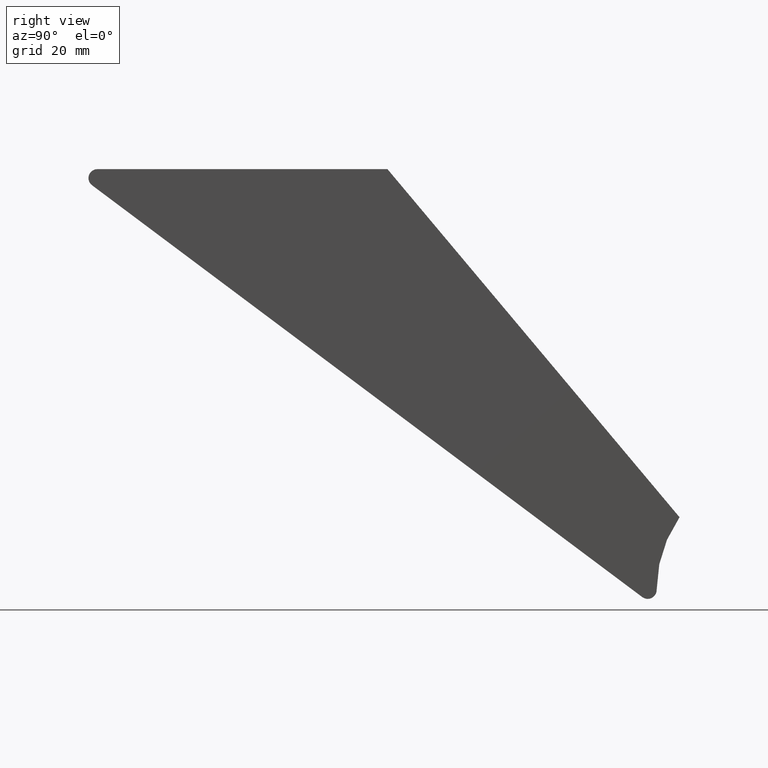
[diagram: clean part render]
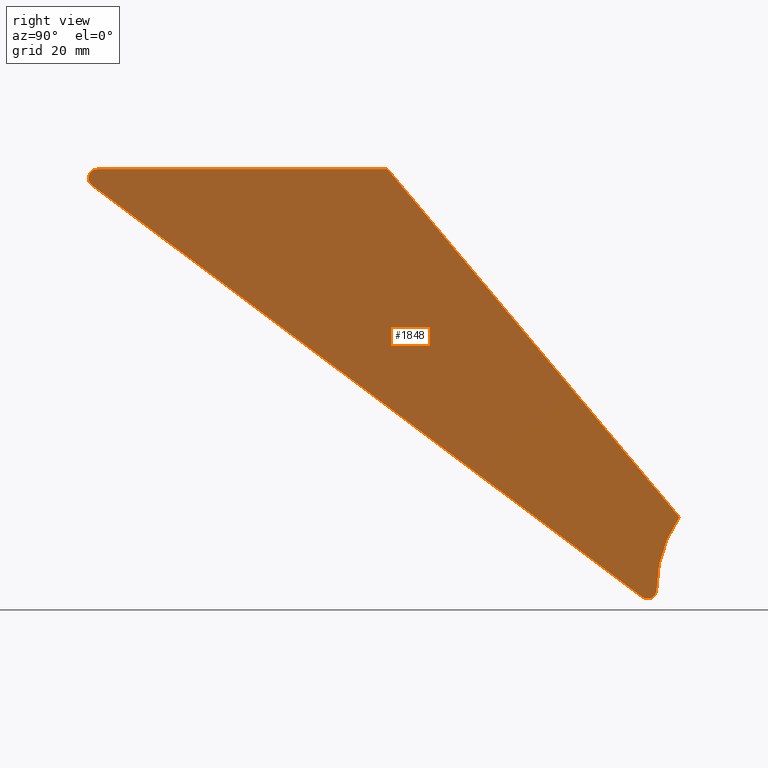
[diagram: same view with one face highlighted and labeled with its STEP entity id]
A machine part, right view. The second image highlights one B-rep face of the part: STEP entity #1848.
In plain terms, the highlighted planar face has unit normal (-1, 0, 0).
Its self-contained STEP definition (entity closure, byte-faithful):
#200 = ORIENTED_EDGE ( 'NONE', *, *, #12769, .T. ) ;
#586 = FACE_OUTER_BOUND ( 'NONE', #7244, .T. ) ;
#605 = EDGE_CURVE ( 'NONE', #7698, #5285, #7611, .T. ) ;
#851 = ORIENTED_EDGE ( 'NONE', *, *, #12301, .F. ) ;
#858 = DIRECTION ( 'NONE',  ( -1.000000000000000000, 0.000000000000000000, 0.000000000000000000 ) ) ;
#1471 = VERTEX_POINT ( 'NONE', #1697 ) ;
#1697 = CARTESIAN_POINT ( 'NONE',  ( 2.500000000000000000, 73.09783299600437090, -58.21457957381940673 ) ) ;
#1768 = PLANE ( 'NONE',  #3956 ) ;
#1848 = ADVANCED_FACE ( 'NONE', ( #586 ), #1768, .F. ) ;
#2257 = CIRCLE ( 'NONE', #3634, 1.499999999999998224 ) ;
#2748 = DIRECTION ( 'NONE',  ( 0.000000000000000000, 0.000000000000000000, 1.000000000000000000 ) ) ;
#2931 = DIRECTION ( 'NONE',  ( -1.000000000000000000, 0.000000000000000000, 0.000000000000000000 ) ) ;
#2989 = AXIS2_PLACEMENT_3D ( 'NONE', #11323, #2931, #10386 ) ;
#3260 = CARTESIAN_POINT ( 'NONE',  ( 2.500000000000000000, -24.25000000000000000, -1.499999999999992450 ) ) ;
#3266 = VERTEX_POINT ( 'NONE', #10722 ) ;
#3594 = CIRCLE ( 'NONE', #11087, 1.500000000000001332 ) ;
#3634 = AXIS2_PLACEMENT_3D ( 'NONE', #3260, #10588, #4342 ) ;
#3956 = AXIS2_PLACEMENT_3D ( 'NONE', #12411, #858, #11263 ) ;
#3967 = VERTEX_POINT ( 'NONE', #10246 ) ;
#4077 = ORIENTED_EDGE ( 'NONE', *, *, #605, .T. ) ;
#4342 = DIRECTION ( 'NONE',  ( 0.000000000000000000, 0.000000000000000000, 1.000000000000000000 ) ) ;
#4661 = CARTESIAN_POINT ( 'NONE',  ( 2.500000000000000000, -25.14880911321005641, -2.700892242464130621 ) ) ;
#4871 = CARTESIAN_POINT ( 'NONE',  ( 2.500000000000000000, 73.09783299600437090, -58.21457957381940673 ) ) ;
#5285 = VERTEX_POINT ( 'NONE', #9086 ) ;
#5315 = EDGE_CURVE ( 'NONE', #5629, #1471, #8481, .T. ) ;
#5629 = VERTEX_POINT ( 'NONE', #9517 ) ;
#5756 = DIRECTION ( 'NONE',  ( -1.000000000000000000, 0.000000000000000000, 0.000000000000000000 ) ) ;
#5802 = CARTESIAN_POINT ( 'NONE',  ( 2.500000000000000000, 90.47316802908825650, -70.36109069792773596 ) ) ;
#6748 = ORIENTED_EDGE ( 'NONE', *, *, #8164, .F. ) ;
#7007 = CIRCLE ( 'NONE', #2989, 1.500000000000001332 ) ;
#7166 = VECTOR ( 'NONE', #13423, 1000.000000000000227 ) ;
#7244 = EDGE_LOOP ( 'NONE', ( #12544, #9911, #4077, #6748, #200, #851, #9437 ) ) ;
#7611 = LINE ( 'NONE', #9309, #12894 ) ;
#7698 = VERTEX_POINT ( 'NONE', #8447 ) ;
#8164 = EDGE_CURVE ( 'NONE', #8377, #5285, #2257, .T. ) ;
#8377 = VERTEX_POINT ( 'NONE', #4661 ) ;
#8447 = CARTESIAN_POINT ( 'NONE',  ( 2.500000000000000000, 24.25000000000000000, 7.392231892978140301E-15 ) ) ;
#8481 = CIRCLE ( 'NONE', #10125, 21.19999999999998863 ) ;
#8540 = CARTESIAN_POINT ( 'NONE',  ( 2.500000000000000000, 67.77317219542860016, -70.37484394605878890 ) ) ;
#8767 = EDGE_CURVE ( 'NONE', #1471, #7698, #11770, .T. ) ;
#8878 = DIRECTION ( 'NONE',  ( 0.000000000000000000, 0.000000000000000000, 1.000000000000000000 ) ) ;
#9086 = CARTESIAN_POINT ( 'NONE',  ( 2.500000000000000000, -24.25000000000000000, 7.392233278580620735E-15 ) ) ;
#9170 = DIRECTION ( 'NONE',  ( 0.000000000000000000, 0.8005948283094241891, -0.5992060754733745664 ) ) ;
#9309 = CARTESIAN_POINT ( 'NONE',  ( 2.500000000000000000, 24.25000000000000000, 7.392231892978140301E-15 ) ) ;
#9437 = ORIENTED_EDGE ( 'NONE', *, *, #10989, .F. ) ;
#9517 = CARTESIAN_POINT ( 'NONE',  ( 2.500000000000000000, 69.27317192011976488, -70.37393514111622039 ) ) ;
#9911 = ORIENTED_EDGE ( 'NONE', *, *, #8767, .T. ) ;
#10125 = AXIS2_PLACEMENT_3D ( 'NONE', #5802, #5756, #2748 ) ;
#10246 = CARTESIAN_POINT ( 'NONE',  ( 2.500000000000000000, 67.77317219542860016, -71.87484394605878890 ) ) ;
#10337 = DIRECTION ( 'NONE',  ( 0.000000000000000000, -1.000000000000000000, 2.856912331452714618E-23 ) ) ;
#10386 = DIRECTION ( 'NONE',  ( 0.000000000000000000, 0.000000000000000000, 1.000000000000000000 ) ) ;
#10588 = DIRECTION ( 'NONE',  ( -1.000000000000000000, 0.000000000000000000, 0.000000000000000000 ) ) ;
#10722 = CARTESIAN_POINT ( 'NONE',  ( 2.500000000000000000, 66.87436308221853665, -71.57573618852293862 ) ) ;
#10835 = VECTOR ( 'NONE', #9170, 1000.000000000000114 ) ;
#10989 = EDGE_CURVE ( 'NONE', #5629, #3967, #7007, .T. ) ;
#11087 = AXIS2_PLACEMENT_3D ( 'NONE', #8540, #11652, #8878 ) ;
#11263 = DIRECTION ( 'NONE',  ( 0.000000000000000000, 0.000000000000000000, 1.000000000000000000 ) ) ;
#11323 = CARTESIAN_POINT ( 'NONE',  ( 2.500000000000000000, 67.77317219542860016, -70.37484394605878890 ) ) ;
#11646 = LINE ( 'NONE', #12365, #10835 ) ;
#11652 = DIRECTION ( 'NONE',  ( -1.000000000000000000, 0.000000000000000000, 0.000000000000000000 ) ) ;
#11770 = LINE ( 'NONE', #4871, #7166 ) ;
#12301 = EDGE_CURVE ( 'NONE', #3967, #3266, #3594, .T. ) ;
#12365 = CARTESIAN_POINT ( 'NONE',  ( 2.500000000000000000, -25.14880911321005641, -2.700892242464128401 ) ) ;
#12411 = CARTESIAN_POINT ( 'NONE',  ( 2.500000000000000000, 90.47316802908825650, -70.36109069792773596 ) ) ;
#12544 = ORIENTED_EDGE ( 'NONE', *, *, #5315, .T. ) ;
#12769 = EDGE_CURVE ( 'NONE', #8377, #3266, #11646, .T. ) ;
#12894 = VECTOR ( 'NONE', #10337, 1000.000000000000000 ) ;
#13423 = DIRECTION ( 'NONE',  ( 0.000000000000000000, -0.6427876154508010975, 0.7660444382821879339 ) ) ;